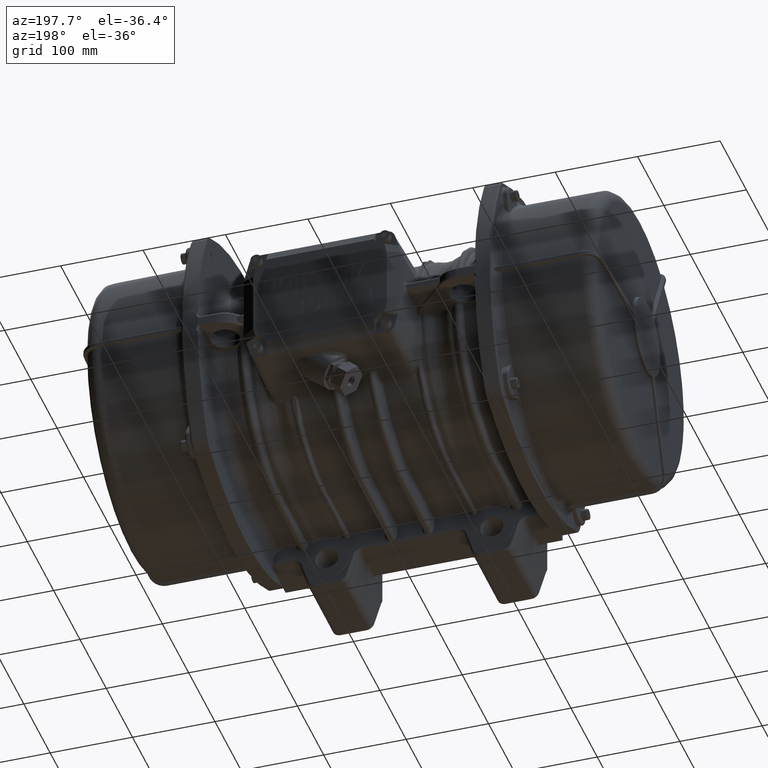
[diagram: clean part render]
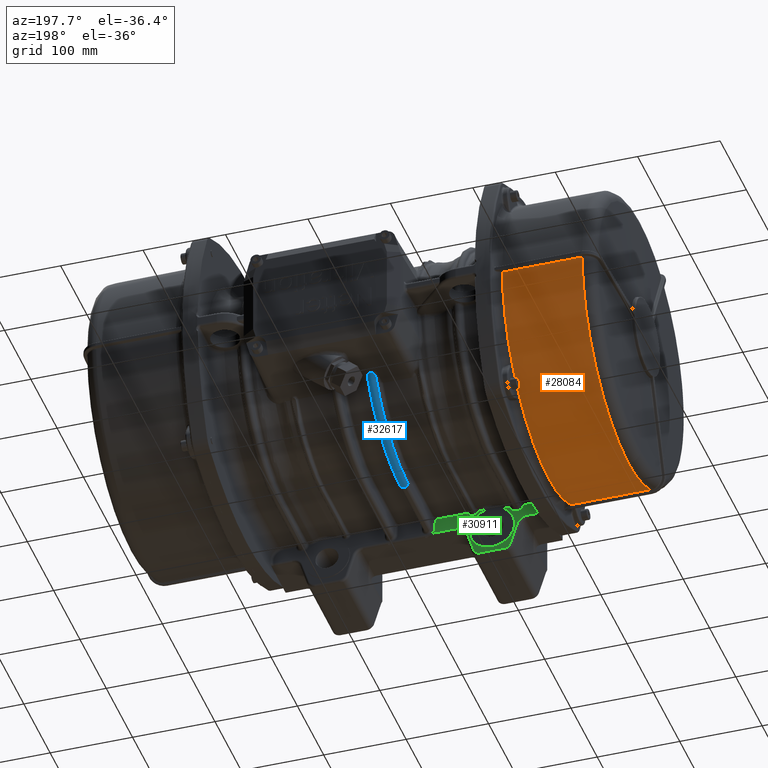
[diagram: same view with three faces highlighted in distinct colors, each labeled with its STEP entity id]
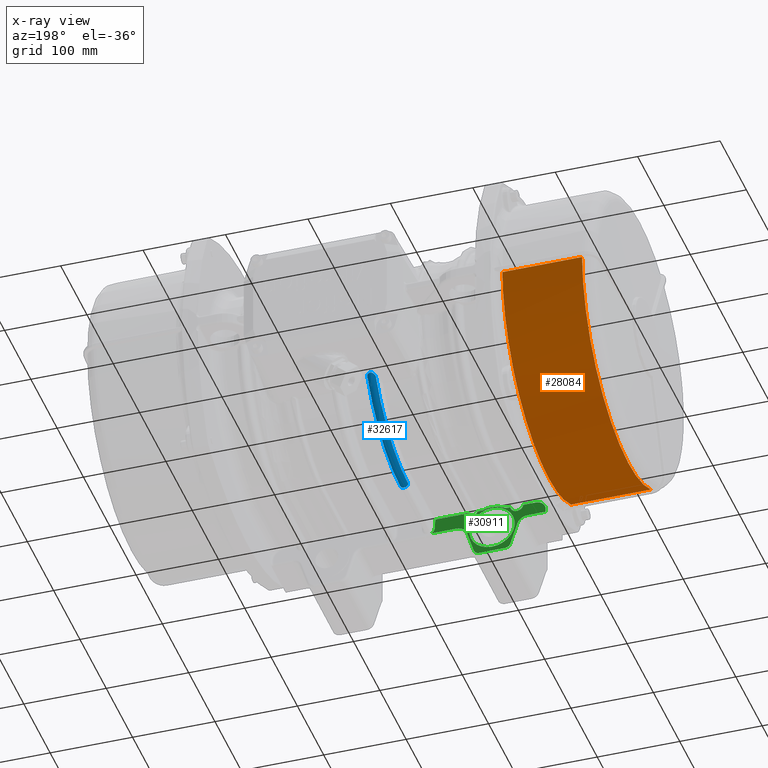
[diagram: x-ray of the same camera — body ghosted, the three highlighted faces saturated]
A machine part, auxiliary view with three faces highlighted in distinct colors.
The next image is the same camera in x-ray (body ghosted, the three faces saturated) — at least one of them is partly hidden behind the body in this view.
Their STEP definitions:

[orange] entity #28084 — the highlighted cylindrical surface (partial cylindrical patch) has radius 176 mm, axis along (1, 0, 0).
#1905 = VERTEX_POINT ( 'NONE', #36332 ) ;
#1939 = EDGE_CURVE ( 'NONE', #1905, #66290, #36334, .T. ) ;
#3062 = CARTESIAN_POINT ( 'NONE',  ( -294.7273494982050000, 192.0000000000000000, -176.0000000000000000 ) ) ;
#3078 = CARTESIAN_POINT ( 'NONE',  ( -294.7273494982050000, 367.9655876217494800, -3.480225988700564900 ) ) ;
#3145 = DIRECTION ( 'NONE',  ( 0.0000000000000000000, 9.462128050782584900E-016, -1.000000000000000000 ) ) ;
#3146 = DIRECTION ( 'NONE',  ( -1.000000000000000000, -0.0000000000000000000, -0.0000000000000000000 ) ) ;
#3147 = CARTESIAN_POINT ( 'NONE',  ( -294.7273494982050000, 192.0000000000000000, 0.0000000000000000000 ) ) ;
#3153 = CIRCLE ( 'NONE', #3159, 176.0000000000000000 ) ;
#3159 = AXIS2_PLACEMENT_3D ( 'NONE', #3147, #3146, #3145 ) ;
#3796 = CIRCLE ( 'NONE', #3831, 176.0000000000000000 ) ;
#3825 = CARTESIAN_POINT ( 'NONE',  ( -198.0000000000000000, 192.0000000000000000, 0.0000000000000000000 ) ) ;
#3831 = AXIS2_PLACEMENT_3D ( 'NONE', #3825, #3884, #3883 ) ;
#3883 = DIRECTION ( 'NONE',  ( 0.0000000000000000000, 0.0000000000000000000, -1.000000000000000000 ) ) ;
#3884 = DIRECTION ( 'NONE',  ( 1.000000000000000000, 0.0000000000000000000, 0.0000000000000000000 ) ) ;
#4163 = CARTESIAN_POINT ( 'NONE',  ( -198.0000000000000000, 192.0000000000000000, -176.0000000000000000 ) ) ;
#4180 = CARTESIAN_POINT ( 'NONE',  ( -198.0000000000000000, 107.0311703062521900, -154.1307820666425000 ) ) ;
#6059 = CARTESIAN_POINT ( 'NONE',  ( -198.0000000000000000, 367.9655876217494800, -3.480225988700564900 ) ) ;
#6127 = CIRCLE ( 'NONE', #6227, 176.0000000000000000 ) ;
#6181 = CARTESIAN_POINT ( 'NONE',  ( -198.0000000000000000, 303.0157716701859800, -136.5704889076450000 ) ) ;
#6220 = DIRECTION ( 'NONE',  ( 0.0000000000000000000, 0.0000000000000000000, -1.000000000000000000 ) ) ;
#6221 = DIRECTION ( 'NONE',  ( 1.000000000000000000, 0.0000000000000000000, 0.0000000000000000000 ) ) ;
#6227 = AXIS2_PLACEMENT_3D ( 'NONE', #6231, #6221, #6220 ) ;
#6231 = CARTESIAN_POINT ( 'NONE',  ( -198.0000000000000000, 192.0000000000000000, 0.0000000000000000000 ) ) ;
#27960 = ORIENTED_EDGE ( 'NONE', *, *, #28061, .F. ) ;
#27963 = EDGE_LOOP ( 'NONE', ( #28068, #27960, #28000, #27997, #28003, #28005, #27999, #28074 ) ) ;
#27997 = ORIENTED_EDGE ( 'NONE', *, *, #52320, .F. ) ;
#27998 = EDGE_CURVE ( 'NONE', #51563, #28064, #48599, .T. ) ;
#27999 = ORIENTED_EDGE ( 'NONE', *, *, #28085, .F. ) ;
#28000 = ORIENTED_EDGE ( 'NONE', *, *, #27998, .F. ) ;
#28003 = ORIENTED_EDGE ( 'NONE', *, *, #28067, .F. ) ;
#28005 = ORIENTED_EDGE ( 'NONE', *, *, #1939, .F. ) ;
#28061 = EDGE_CURVE ( 'NONE', #28064, #58779, #48787, .T. ) ;
#28064 = VERTEX_POINT ( 'NONE', #48790 ) ;
#28067 = EDGE_CURVE ( 'NONE', #66290, #51921, #48776, .T. ) ;
#28068 = ORIENTED_EDGE ( 'NONE', *, *, #56525, .F. ) ;
#28074 = ORIENTED_EDGE ( 'NONE', *, *, #66765, .F. ) ;
#28084 = ADVANCED_FACE ( 'NONE', ( #48815 ), #48822, .T. ) ;
#28085 = EDGE_CURVE ( 'NONE', #66762, #1905, #48805, .T. ) ;
#36328 = DIRECTION ( 'NONE',  ( 0.0000000000000000000, 0.0000000000000000000, -1.000000000000000000 ) ) ;
#36329 = DIRECTION ( 'NONE',  ( 1.000000000000000000, 0.0000000000000000000, 0.0000000000000000000 ) ) ;
#36330 = AXIS2_PLACEMENT_3D ( 'NONE', #36339, #36329, #36328 ) ;
#36332 = CARTESIAN_POINT ( 'NONE',  ( -198.0000000000000000, 328.5704889076450300, -111.0157716701859800 ) ) ;
#36334 = CIRCLE ( 'NONE', #36330, 176.0000000000000000 ) ;
#36339 = CARTESIAN_POINT ( 'NONE',  ( -198.0000000000000000, 192.0000000000000000, 0.0000000000000000000 ) ) ;
#48599 = CIRCLE ( 'NONE', #48641, 176.0000000000000000 ) ;
#48629 = DIRECTION ( 'NONE',  ( 0.0000000000000000000, 0.0000000000000000000, -1.000000000000000000 ) ) ;
#48630 = DIRECTION ( 'NONE',  ( -1.000000000000000000, -0.0000000000000000000, -0.0000000000000000000 ) ) ;
#48631 = CARTESIAN_POINT ( 'NONE',  ( -294.7273494982050000, 192.0000000000000000, 0.0000000000000000000 ) ) ;
#48641 = AXIS2_PLACEMENT_3D ( 'NONE', #48631, #48630, #48629 ) ;
#48773 = DIRECTION ( 'NONE',  ( -1.000000000000000000, -0.0000000000000000000, -0.0000000000000000000 ) ) ;
#48774 = VECTOR ( 'NONE', #48773, 1000.000000000000000 ) ;
#48775 = CARTESIAN_POINT ( 'NONE',  ( -318.1999999999999900, 367.9655876217494800, -3.480225988700564900 ) ) ;
#48776 = LINE ( 'NONE', #48775, #48774 ) ;
#48780 = DIRECTION ( 'NONE',  ( 1.000000000000000000, 0.0000000000000000000, 0.0000000000000000000 ) ) ;
#48781 = VECTOR ( 'NONE', #48780, 1000.000000000000000 ) ;
#48787 = LINE ( 'NONE', #48789, #48781 ) ;
#48789 = CARTESIAN_POINT ( 'NONE',  ( -318.1999999999999900, 107.0311703062521900, -154.1307820666425000 ) ) ;
#48790 = CARTESIAN_POINT ( 'NONE',  ( -294.7273494982050000, 107.0311703062521900, -154.1307820666425000 ) ) ;
#48802 = DIRECTION ( 'NONE',  ( 0.0000000000000000000, 0.0000000000000000000, 1.000000000000000000 ) ) ;
#48803 = DIRECTION ( 'NONE',  ( 1.000000000000000000, 0.0000000000000000000, 0.0000000000000000000 ) ) ;
#48805 = CIRCLE ( 'NONE', #48855, 176.0000000000000000 ) ;
#48808 = CARTESIAN_POINT ( 'NONE',  ( -318.1999999999999900, 192.0000000000000000, 0.0000000000000000000 ) ) ;
#48815 = FACE_OUTER_BOUND ( 'NONE', #27963, .T. ) ;
#48816 = AXIS2_PLACEMENT_3D ( 'NONE', #48808, #48803, #48802 ) ;
#48822 = CYLINDRICAL_SURFACE ( 'NONE', #48816, 176.0000000000000000 ) ;
#48852 = DIRECTION ( 'NONE',  ( 0.0000000000000000000, 0.0000000000000000000, -1.000000000000000000 ) ) ;
#48853 = DIRECTION ( 'NONE',  ( 1.000000000000000000, 0.0000000000000000000, 0.0000000000000000000 ) ) ;
#48854 = CARTESIAN_POINT ( 'NONE',  ( -198.0000000000000000, 192.0000000000000000, 0.0000000000000000000 ) ) ;
#48855 = AXIS2_PLACEMENT_3D ( 'NONE', #48854, #48853, #48852 ) ;
#51563 = VERTEX_POINT ( 'NONE', #3062 ) ;
#51921 = VERTEX_POINT ( 'NONE', #3078 ) ;
#52320 = EDGE_CURVE ( 'NONE', #51921, #51563, #3153, .T. ) ;
#56525 = EDGE_CURVE ( 'NONE', #58779, #58784, #3796, .T. ) ;
#58779 = VERTEX_POINT ( 'NONE', #4180 ) ;
#58784 = VERTEX_POINT ( 'NONE', #4163 ) ;
#66290 = VERTEX_POINT ( 'NONE', #6059 ) ;
#66762 = VERTEX_POINT ( 'NONE', #6181 ) ;
#66765 = EDGE_CURVE ( 'NONE', #58784, #66762, #6127, .T. ) ;

[blue] entity #32617 — the highlighted toroidal blend (fillet) surface has major radius 145 mm and minor (blend) radius 5 mm.
#32544 = ORIENTED_EDGE ( 'NONE', *, *, #32604, .F. ) ;
#32547 = ORIENTED_EDGE ( 'NONE', *, *, #32614, .T. ) ;
#32548 = EDGE_LOOP ( 'NONE', ( #32600, #32547, #32603, #32544 ) ) ;
#32549 = VERTEX_POINT ( 'NONE', #62204 ) ;
#32600 = ORIENTED_EDGE ( 'NONE', *, *, #32611, .F. ) ;
#32602 = VERTEX_POINT ( 'NONE', #62369 ) ;
#32603 = ORIENTED_EDGE ( 'NONE', *, *, #32609, .T. ) ;
#32604 = EDGE_CURVE ( 'NONE', #32549, #32602, #62403, .T. ) ;
#32609 = EDGE_CURVE ( 'NONE', #32615, #32602, #62395, .T. ) ;
#32610 = VERTEX_POINT ( 'NONE', #62461 ) ;
#32611 = EDGE_CURVE ( 'NONE', #32610, #32549, #62463, .T. ) ;
#32614 = EDGE_CURVE ( 'NONE', #32610, #32615, #62439, .T. ) ;
#32615 = VERTEX_POINT ( 'NONE', #62458 ) ;
#32617 = ADVANCED_FACE ( 'NONE', ( #62453 ), #62438, .T. ) ;
#62204 = CARTESIAN_POINT ( 'NONE',  ( -27.49314767377285000, 192.0000000000000000, -145.2616797812146100 ) ) ;
#62369 = CARTESIAN_POINT ( 'NONE',  ( -17.50685232622709700, 192.0000000000000000, -145.2616797812146100 ) ) ;
#62391 = DIRECTION ( 'NONE',  ( 0.0000000000000000000, 5.551115123125778000E-015, -1.000000000000000000 ) ) ;
#62392 = DIRECTION ( 'NONE',  ( 0.0000000000000000000, -1.000000000000000000, -3.491483361109380100E-015 ) ) ;
#62393 = CARTESIAN_POINT ( 'NONE',  ( -22.50000000000000000, 192.0000000000000000, -145.0000000000000000 ) ) ;
#62394 = AXIS2_PLACEMENT_3D ( 'NONE', #62393, #62392, #62391 ) ;
#62395 = CIRCLE ( 'NONE', #62456, 145.2616797812146100 ) ;
#62403 = CIRCLE ( 'NONE', #62394, 5.000000000000004400 ) ;
#62429 = CARTESIAN_POINT ( 'NONE',  ( -25.82168555872691200, 319.7250683078392500, -76.24558593381448200 ) ) ;
#62430 = CARTESIAN_POINT ( 'NONE',  ( -26.05491360232753100, 319.4181314283311500, -76.32590107787559900 ) ) ;
#62431 = CARTESIAN_POINT ( 'NONE',  ( -26.45893102383966100, 318.7806706196648700, -76.49335913303477200 ) ) ;
#62432 = CARTESIAN_POINT ( 'NONE',  ( -26.63256880780872700, 318.4473047679450100, -76.58123969586637300 ) ) ;
#62433 = CARTESIAN_POINT ( 'NONE',  ( -26.93149750891170100, 317.7556930875536500, -76.76430417584049300 ) ) ;
#62434 = CARTESIAN_POINT ( 'NONE',  ( -27.05632007852972600, 317.3971714623569900, -76.85956771586801000 ) ) ;
#62435 = CARTESIAN_POINT ( 'NONE',  ( -27.35708452477506800, 316.3166869459751600, -77.14785012040103100 ) ) ;
#62436 = CARTESIAN_POINT ( 'NONE',  ( -27.46557129251683100, 315.5800906977395900, -77.34592474194130300 ) ) ;
#62437 = CARTESIAN_POINT ( 'NONE',  ( -27.49314767377290300, 314.8292738233140000, -77.54950099708899800 ) ) ;
#62438 = TOROIDAL_SURFACE ( 'NONE', #62440, 145.0000000000000000, 5.000000000000000000 ) ;
#62439 = B_SPLINE_CURVE_WITH_KNOTS ( 'NONE', 3,
 ( #62437, #62436, #62435, #62434, #62433, #62432, #62431, #62430, #62429, #62505, #62504, #62503, #62502, #62501, #62500, #62499, #62498, #62497, #62496, #62495, #62494, #62493, #62492, #62491, #62490, #62489, #62487, #62486, #62485, #62484, #62483, #62482, #62481, #62480, #62479, #62478 ),
 .UNSPECIFIED., .F., .F.,
 ( 4, 2, 2, 2, 2, 2, 2, 2, 2, 2, 2, 2, 2, 2, 2, 2, 2, 4 ),
 ( 0.0000000000000000000, 0.002309086581001514000, 0.003463629871502265900, 0.004618173162003018400, 0.005772716452503770300, 0.006927259743004521500, 0.007504531388254943000, 0.008081803033505365400, 0.008659074678755786900, 0.009236346324006208500, 0.01039088961450705200, 0.01096816125975747100, 0.01154543290500788900, 0.01269997619550882100, 0.01385451948600974900, 0.01500906277651067900, 0.01616360606701160900, 0.01847269264801331900 ),
 .UNSPECIFIED. ) ;
#62440 = AXIS2_PLACEMENT_3D ( 'NONE', #62476, #62531, #62526 ) ;
#62446 = DIRECTION ( 'NONE',  ( 2.866094037061206900E-016, -1.000000000000000000, 0.0000000000000000000 ) ) ;
#62453 = FACE_OUTER_BOUND ( 'NONE', #32548, .T. ) ;
#62454 = AXIS2_PLACEMENT_3D ( 'NONE', #62459, #62457, #62446 ) ;
#62455 = DIRECTION ( 'NONE',  ( 2.866094037061206900E-016, -1.000000000000000000, 0.0000000000000000000 ) ) ;
#62456 = AXIS2_PLACEMENT_3D ( 'NONE', #62460, #62462, #62455 ) ;
#62457 = DIRECTION ( 'NONE',  ( -1.000000000000000000, -2.954685734924855400E-016, 0.0000000000000000000 ) ) ;
#62458 = CARTESIAN_POINT ( 'NONE',  ( -17.50685232622715000, 314.8292738233140000, -77.54950099708909800 ) ) ;
#62459 = CARTESIAN_POINT ( 'NONE',  ( -27.49314767377285000, 192.0000000000000000, 0.0000000000000000000 ) ) ;
#62460 = CARTESIAN_POINT ( 'NONE',  ( -17.50685232622709700, 192.0000000000000000, 0.0000000000000000000 ) ) ;
#62461 = CARTESIAN_POINT ( 'NONE',  ( -27.49314767377290300, 314.8292738233140000, -77.54950099708899800 ) ) ;
#62462 = DIRECTION ( 'NONE',  ( -1.000000000000000000, -2.954685734924855400E-016, 0.0000000000000000000 ) ) ;
#62463 = CIRCLE ( 'NONE', #62454, 145.2616797812146100 ) ;
#62476 = CARTESIAN_POINT ( 'NONE',  ( -22.50000000000000000, 192.0000000000000000, 0.0000000000000000000 ) ) ;
#62478 = CARTESIAN_POINT ( 'NONE',  ( -17.50685232622715000, 314.8292738233140000, -77.54950099708909800 ) ) ;
#62479 = CARTESIAN_POINT ( 'NONE',  ( -17.53445597881295400, 315.5808332090342700, -77.34572341765864700 ) ) ;
#62480 = CARTESIAN_POINT ( 'NONE',  ( -17.64385592480598000, 316.3234123109943400, -77.14604126533127700 ) ) ;
#62481 = CARTESIAN_POINT ( 'NONE',  ( -17.94746551110850800, 317.4090621220678900, -76.85640257629336200 ) ) ;
#62482 = CARTESIAN_POINT ( 'NONE',  ( -18.07292651534640600, 317.7673836800528300, -76.76120224305181200 ) ) ;
#62483 = CARTESIAN_POINT ( 'NONE',  ( -18.37261991906412500, 318.4578070601728000, -76.57846758239863000 ) ) ;
#62484 = CARTESIAN_POINT ( 'NONE',  ( -18.54715745362087300, 318.7919163093849900, -76.49039661821436200 ) ) ;
#62485 = CARTESIAN_POINT ( 'NONE',  ( -18.95577513951296900, 319.4332881046252600, -76.32192816105359200 ) ) ;
#62486 = CARTESIAN_POINT ( 'NONE',  ( -19.18775694177274000, 319.7365990046765200, -76.24257193622625600 ) ) ;
#62487 = CARTESIAN_POINT ( 'NONE',  ( -19.70911321376621600, 320.2898789251436800, -76.09824526224720400 ) ) ;
#62489 = CARTESIAN_POINT ( 'NONE',  ( -20.00382701962402300, 320.5442014857476900, -76.03214280166581300 ) ) ;
#62490 = CARTESIAN_POINT ( 'NONE',  ( -20.48273742845209000, 320.8617259536046600, -75.94979094998456000 ) ) ;
#62491 = CARTESIAN_POINT ( 'NONE',  ( -20.64864950907004000, 320.9573183131379300, -75.92503238154479600 ) ) ;
#62492 = CARTESIAN_POINT ( 'NONE',  ( -20.99430803114550400, 321.1258970898408100, -75.88140802502640300 ) ) ;
#62493 = CARTESIAN_POINT ( 'NONE',  ( -21.17551798325245100, 321.1993441986943500, -75.86242322685194500 ) ) ;
#62494 = CARTESIAN_POINT ( 'NONE',  ( -21.73235080224011600, 321.3773533239248100, -75.81643684669427300 ) ) ;
#62495 = CARTESIAN_POINT ( 'NONE',  ( -22.11243519560441900, 321.4383990706971300, -75.80069921994335400 ) ) ;
#62496 = CARTESIAN_POINT ( 'NONE',  ( -22.69668795535733400, 321.4380900934025400, -75.80077892774350800 ) ) ;
#62497 = CARTESIAN_POINT ( 'NONE',  ( -22.89352794490225300, 321.4222293747192800, -75.80486983103405400 ) ) ;
#62498 = CARTESIAN_POINT ( 'NONE',  ( -23.28089224799281700, 321.3596768401610000, -75.82101269287906600 ) ) ;
#62499 = CARTESIAN_POINT ( 'NONE',  ( -23.46972390857787300, 321.3135159796216800, -75.83292786505653300 ) ) ;
#62500 = CARTESIAN_POINT ( 'NONE',  ( -23.83710866512792100, 321.1944826840140800, -75.86367972425929900 ) ) ;
#62501 = CARTESIAN_POINT ( 'NONE',  ( -24.01591675597022000, 321.1215529141958900, -75.88253124770206200 ) ) ;
#62502 = CARTESIAN_POINT ( 'NONE',  ( -24.36429056287362400, 320.9503207422525300, -75.92684421030024600 ) ) ;
#62503 = CARTESIAN_POINT ( 'NONE',  ( -24.53375784904948600, 320.8517820213483600, -75.95236760650763600 ) ) ;
#62504 = CARTESIAN_POINT ( 'NONE',  ( -25.01486580925989100, 320.5296536597620000, -76.03592098894573300 ) ) ;
#62505 = CARTESIAN_POINT ( 'NONE',  ( -25.30167741228840200, 320.2798800069168100, -76.10084763883296000 ) ) ;
#62526 = DIRECTION ( 'NONE',  ( 2.954685734924855400E-016, -1.000000000000000000, 0.0000000000000000000 ) ) ;
#62531 = DIRECTION ( 'NONE',  ( -1.000000000000000000, -2.954685734924855400E-016, 0.0000000000000000000 ) ) ;

[green] entity #30911 — the highlighted planar face has unit normal (0, 1, 0).
#30190 = VERTEX_POINT ( 'NONE', #55546 ) ;
#30196 = VERTEX_POINT ( 'NONE', #55588 ) ;
#30200 = EDGE_CURVE ( 'NONE', #30196, #30190, #55582, .T. ) ;
#30859 = VERTEX_POINT ( 'NONE', #57529 ) ;
#30902 = EDGE_CURVE ( 'NONE', #30910, #30990, #57649, .T. ) ;
#30903 = ORIENTED_EDGE ( 'NONE', *, *, #30904, .T. ) ;
#30904 = EDGE_CURVE ( 'NONE', #30987, #30986, #57650, .T. ) ;
#30905 = VERTEX_POINT ( 'NONE', #57589 ) ;
#30906 = EDGE_CURVE ( 'NONE', #30986, #30910, #57631, .T. ) ;
#30908 = VERTEX_POINT ( 'NONE', #57625 ) ;
#30909 = VERTEX_POINT ( 'NONE', #57624 ) ;
#30910 = VERTEX_POINT ( 'NONE', #57620 ) ;
#30911 = ADVANCED_FACE ( 'NONE', ( #57618, #57638 ), #57627, .T. ) ;
#30912 = ORIENTED_EDGE ( 'NONE', *, *, #33698, .F. ) ;
#30913 = VERTEX_POINT ( 'NONE', #57617 ) ;
#30914 = EDGE_CURVE ( 'NONE', #33709, #33716, #57662, .T. ) ;
#30915 = VERTEX_POINT ( 'NONE', #57664 ) ;
#30916 = EDGE_CURVE ( 'NONE', #30908, #30915, #57669, .T. ) ;
#30917 = EDGE_LOOP ( 'NONE', ( #30981, #30918, #30988, #30991, #30983, #30903, #30973, #30975, #30978, #30972, #30980, #30958, #30961, #30965, #30969, #30946, #30933, #31036, #30954, #30948, #30950, #30952, #31033 ) ) ;
#30918 = ORIENTED_EDGE ( 'NONE', *, *, #30982, .T. ) ;
#30925 = EDGE_LOOP ( 'NONE', ( #30931, #30912 ) ) ;
#30931 = ORIENTED_EDGE ( 'NONE', *, *, #30914, .F. ) ;
#30933 = ORIENTED_EDGE ( 'NONE', *, *, #30964, .T. ) ;
#30946 = ORIENTED_EDGE ( 'NONE', *, *, #31035, .T. ) ;
#30947 = VERTEX_POINT ( 'NONE', #57758 ) ;
#30948 = ORIENTED_EDGE ( 'NONE', *, *, #30955, .T. ) ;
#30949 = EDGE_CURVE ( 'NONE', #30960, #30963, #57757, .T. ) ;
#30950 = ORIENTED_EDGE ( 'NONE', *, *, #31029, .T. ) ;
#30951 = EDGE_CURVE ( 'NONE', #30963, #30909, #57756, .T. ) ;
#30952 = ORIENTED_EDGE ( 'NONE', *, *, #31031, .T. ) ;
#30953 = VERTEX_POINT ( 'NONE', #57750 ) ;
#30954 = ORIENTED_EDGE ( 'NONE', *, *, #30951, .T. ) ;
#30955 = EDGE_CURVE ( 'NONE', #30909, #30947, #57749, .T. ) ;
#30956 = EDGE_CURVE ( 'NONE', #30905, #30979, #57746, .T. ) ;
#30958 = ORIENTED_EDGE ( 'NONE', *, *, #30956, .T. ) ;
#30959 = EDGE_CURVE ( 'NONE', #30979, #30971, #57795, .T. ) ;
#30960 = VERTEX_POINT ( 'NONE', #57751 ) ;
#30961 = ORIENTED_EDGE ( 'NONE', *, *, #30959, .T. ) ;
#30962 = EDGE_CURVE ( 'NONE', #30971, #30974, #57766, .T. ) ;
#30963 = VERTEX_POINT ( 'NONE', #57789 ) ;
#30964 = EDGE_CURVE ( 'NONE', #30967, #30960, #57786, .T. ) ;
#30965 = ORIENTED_EDGE ( 'NONE', *, *, #30962, .T. ) ;
#30966 = EDGE_CURVE ( 'NONE', #30974, #30970, #57779, .T. ) ;
#30967 = VERTEX_POINT ( 'NONE', #57796 ) ;
#30968 = VERTEX_POINT ( 'NONE', #57737 ) ;
#30969 = ORIENTED_EDGE ( 'NONE', *, *, #30966, .T. ) ;
#30970 = VERTEX_POINT ( 'NONE', #57781 ) ;
#30971 = VERTEX_POINT ( 'NONE', #57780 ) ;
#30972 = ORIENTED_EDGE ( 'NONE', *, *, #30200, .T. ) ;
#30973 = ORIENTED_EDGE ( 'NONE', *, *, #30906, .T. ) ;
#30974 = VERTEX_POINT ( 'NONE', #57790 ) ;
#30975 = ORIENTED_EDGE ( 'NONE', *, *, #30902, .T. ) ;
#30976 = EDGE_CURVE ( 'NONE', #30990, #30196, #57773, .T. ) ;
#30977 = EDGE_CURVE ( 'NONE', #30190, #30905, #57775, .T. ) ;
#30978 = ORIENTED_EDGE ( 'NONE', *, *, #30976, .T. ) ;
#30979 = VERTEX_POINT ( 'NONE', #57829 ) ;
#30980 = ORIENTED_EDGE ( 'NONE', *, *, #30977, .T. ) ;
#30981 = ORIENTED_EDGE ( 'NONE', *, *, #30916, .T. ) ;
#30982 = EDGE_CURVE ( 'NONE', #30915, #30859, #57825, .T. ) ;
#30983 = ORIENTED_EDGE ( 'NONE', *, *, #30992, .T. ) ;
#30984 = VERTEX_POINT ( 'NONE', #57826 ) ;
#30985 = EDGE_CURVE ( 'NONE', #30859, #30984, #57827, .T. ) ;
#30986 = VERTEX_POINT ( 'NONE', #57830 ) ;
#30987 = VERTEX_POINT ( 'NONE', #57820 ) ;
#30988 = ORIENTED_EDGE ( 'NONE', *, *, #30985, .T. ) ;
#30989 = EDGE_CURVE ( 'NONE', #30984, #30913, #57814, .T. ) ;
#30990 = VERTEX_POINT ( 'NONE', #57821 ) ;
#30991 = ORIENTED_EDGE ( 'NONE', *, *, #30989, .T. ) ;
#30992 = EDGE_CURVE ( 'NONE', #30913, #30987, #57804, .T. ) ;
#31029 = EDGE_CURVE ( 'NONE', #30947, #30953, #57912, .T. ) ;
#31031 = EDGE_CURVE ( 'NONE', #30953, #30968, #57917, .T. ) ;
#31032 = EDGE_CURVE ( 'NONE', #30968, #30908, #57903, .T. ) ;
#31033 = ORIENTED_EDGE ( 'NONE', *, *, #31032, .T. ) ;
#31035 = EDGE_CURVE ( 'NONE', #30970, #30967, #57940, .T. ) ;
#31036 = ORIENTED_EDGE ( 'NONE', *, *, #30949, .T. ) ;
#33698 = EDGE_CURVE ( 'NONE', #33716, #33709, #65758, .T. ) ;
#33709 = VERTEX_POINT ( 'NONE', #65409 ) ;
#33716 = VERTEX_POINT ( 'NONE', #65789 ) ;
#55542 = AXIS2_PLACEMENT_3D ( 'NONE', #55575, #55564, #55563 ) ;
#55546 = CARTESIAN_POINT ( 'NONE',  ( -91.15759033878319400, 100.0000000000000000, -132.3809523809528100 ) ) ;
#55563 = DIRECTION ( 'NONE',  ( 0.0000000000000000000, 0.0000000000000000000, 1.000000000000000000 ) ) ;
#55564 = DIRECTION ( 'NONE',  ( 0.0000000000000000000, 1.000000000000000000, 0.0000000000000000000 ) ) ;
#55575 = CARTESIAN_POINT ( 'NONE',  ( -100.0000000000000000, 100.0000000000000000, -160.0000000000000000 ) ) ;
#55582 = CIRCLE ( 'NONE', #55542, 28.99999999999999600 ) ;
#55588 = CARTESIAN_POINT ( 'NONE',  ( -100.0000000000000000, 100.0000000000000000, -131.0000000000000000 ) ) ;
#57035 = DIRECTION ( 'NONE',  ( -5.337610695313253000E-015, 0.0000000000000000000, 1.000000000000000000 ) ) ;
#57529 = CARTESIAN_POINT ( 'NONE',  ( -165.0000000000000000, 100.0000000000000000, -152.0000000000000000 ) ) ;
#57584 = AXIS2_PLACEMENT_3D ( 'NONE', #57591, #57640, #57639 ) ;
#57589 = CARTESIAN_POINT ( 'NONE',  ( -87.19375152513438800, 100.0000000000000000, -133.0000000000000000 ) ) ;
#57591 = CARTESIAN_POINT ( 'NONE',  ( -119.8746069143442100, 100.0000000000000000, -122.9999999999964000 ) ) ;
#57617 = CARTESIAN_POINT ( 'NONE',  ( -153.0000000000000000, 100.0000000000000000, -135.9999999999962200 ) ) ;
#57618 = FACE_BOUND ( 'NONE', #30925, .T. ) ;
#57620 = CARTESIAN_POINT ( 'NONE',  ( -119.8746069143442100, 100.0000000000000000, -135.9999999999962200 ) ) ;
#57624 = CARTESIAN_POINT ( 'NONE',  ( -77.81748964407789500, 100.0000000000000000, -188.0842397518025000 ) ) ;
#57625 = CARTESIAN_POINT ( 'NONE',  ( -130.5896236247162100, 100.0000000000000000, -161.1292690323664900 ) ) ;
#57627 = PLANE ( 'NONE',  #57634 ) ;
#57628 = DIRECTION ( 'NONE',  ( 1.000000000000000000, -0.0000000000000000000, -0.0000000000000000000 ) ) ;
#57629 = VECTOR ( 'NONE', #57628, 1000.000000000000000 ) ;
#57630 = CARTESIAN_POINT ( 'NONE',  ( -143.0000000000000000, 100.0000000000000000, -135.9999999999962200 ) ) ;
#57631 = LINE ( 'NONE', #57630, #57629 ) ;
#57634 = AXIS2_PLACEMENT_3D ( 'NONE', #57668, #57667, #57666 ) ;
#57635 = DIRECTION ( 'NONE',  ( -3.469446951953611000E-015, 0.0000000000000000000, 1.000000000000000000 ) ) ;
#57636 = DIRECTION ( 'NONE',  ( -0.0000000000000000000, -1.000000000000000000, -0.0000000000000000000 ) ) ;
#57638 = FACE_OUTER_BOUND ( 'NONE', #30917, .T. ) ;
#57639 = DIRECTION ( 'NONE',  ( -2.135044278125301300E-015, 0.0000000000000000000, 1.000000000000000000 ) ) ;
#57640 = DIRECTION ( 'NONE',  ( -0.0000000000000000000, -1.000000000000000000, -0.0000000000000000000 ) ) ;
#57641 = CARTESIAN_POINT ( 'NONE',  ( -130.0000000000000000, 100.0000000000000000, -135.0000000000000000 ) ) ;
#57644 = AXIS2_PLACEMENT_3D ( 'NONE', #57641, #57636, #57635 ) ;
#57649 = CIRCLE ( 'NONE', #57584, 12.99999999999999800 ) ;
#57650 = CIRCLE ( 'NONE', #57644, 8.000000000000007100 ) ;
#57658 = AXIS2_PLACEMENT_3D ( 'NONE', #57663, #57707, #57706 ) ;
#57659 = DIRECTION ( 'NONE',  ( 0.0000000000000000000, 0.0000000000000000000, 1.000000000000000000 ) ) ;
#57660 = DIRECTION ( 'NONE',  ( 0.0000000000000000000, 1.000000000000000000, 0.0000000000000000000 ) ) ;
#57661 = AXIS2_PLACEMENT_3D ( 'NONE', #57670, #57660, #57659 ) ;
#57662 = CIRCLE ( 'NONE', #57661, 27.49999999999999600 ) ;
#57663 = CARTESIAN_POINT ( 'NONE',  ( -143.0000000000000000, 100.0000000000000000, -165.0000000000000000 ) ) ;
#57664 = CARTESIAN_POINT ( 'NONE',  ( -143.0000000000000000, 100.0000000000000000, -152.0000000000000000 ) ) ;
#57666 = DIRECTION ( 'NONE',  ( 0.0000000000000000000, 0.0000000000000000000, 1.000000000000000000 ) ) ;
#57667 = DIRECTION ( 'NONE',  ( 0.0000000000000000000, 1.000000000000000000, 0.0000000000000000000 ) ) ;
#57668 = CARTESIAN_POINT ( 'NONE',  ( -143.0000000000000000, 100.0000000000000000, -165.0000000000000000 ) ) ;
#57669 = CIRCLE ( 'NONE', #57658, 13.00000000000001100 ) ;
#57670 = CARTESIAN_POINT ( 'NONE',  ( -100.0000000000000000, 100.0000000000000000, -160.0000000000000000 ) ) ;
#57706 = DIRECTION ( 'NONE',  ( -4.270088556250598700E-015, 0.0000000000000000000, 1.000000000000000000 ) ) ;
#57707 = DIRECTION ( 'NONE',  ( -0.0000000000000000000, -1.000000000000000000, -0.0000000000000000000 ) ) ;
#57726 = AXIS2_PLACEMENT_3D ( 'NONE', #57754, #57753, #57752 ) ;
#57737 = CARTESIAN_POINT ( 'NONE',  ( -122.1825103559220100, 100.0000000000000000, -188.0842397518025000 ) ) ;
#57738 = DIRECTION ( 'NONE',  ( 1.000000000000000000, -0.0000000000000000000, -0.0000000000000000000 ) ) ;
#57739 = VECTOR ( 'NONE', #57738, 1000.000000000000000 ) ;
#57740 = DIRECTION ( 'NONE',  ( 1.000000000000000000, -0.0000000000000000000, 2.560469903783130400E-015 ) ) ;
#57741 = CARTESIAN_POINT ( 'NONE',  ( -143.0000000000000000, 100.0000000000000000, -133.0000000000000000 ) ) ;
#57742 = DIRECTION ( 'NONE',  ( 0.0000000000000000000, 0.0000000000000000000, 1.000000000000000000 ) ) ;
#57743 = DIRECTION ( 'NONE',  ( 0.0000000000000000000, 1.000000000000000000, 0.0000000000000000000 ) ) ;
#57744 = CARTESIAN_POINT ( 'NONE',  ( -84.50000000000000000, 100.0000000000000000, -186.0000000000000000 ) ) ;
#57745 = CARTESIAN_POINT ( 'NONE',  ( -143.0000000000000000, 100.0000000000000000, -133.0000000000000000 ) ) ;
#57746 = LINE ( 'NONE', #57745, #57739 ) ;
#57747 = DIRECTION ( 'NONE',  ( -0.2977485359718139400, 0.0000000000000000000, -0.9546443365602926800 ) ) ;
#57748 = VECTOR ( 'NONE', #57747, 1000.000000000000100 ) ;
#57749 = CIRCLE ( 'NONE', #57761, 7.000000000000006200 ) ;
#57750 = CARTESIAN_POINT ( 'NONE',  ( -115.5000000000000000, 100.0000000000000000, -193.0000000000000000 ) ) ;
#57751 = CARTESIAN_POINT ( 'NONE',  ( -57.00000000000000000, 100.0000000000000000, -152.0000000000000000 ) ) ;
#57752 = DIRECTION ( 'NONE',  ( 0.0000000000000000000, 0.0000000000000000000, 1.000000000000000000 ) ) ;
#57753 = DIRECTION ( 'NONE',  ( -0.0000000000000000000, -1.000000000000000000, -0.0000000000000000000 ) ) ;
#57754 = CARTESIAN_POINT ( 'NONE',  ( -57.00000000000000000, 100.0000000000000000, -165.0000000000000000 ) ) ;
#57755 = CARTESIAN_POINT ( 'NONE',  ( -77.81748964407800900, 100.0000000000000000, -188.0842397518025000 ) ) ;
#57756 = LINE ( 'NONE', #57755, #57748 ) ;
#57757 = CIRCLE ( 'NONE', #57726, 13.00000000000001100 ) ;
#57758 = CARTESIAN_POINT ( 'NONE',  ( -84.50000000000000000, 100.0000000000000000, -193.0000000000000000 ) ) ;
#57761 = AXIS2_PLACEMENT_3D ( 'NONE', #57744, #57743, #57742 ) ;
#57766 = LINE ( 'NONE', #57741, #57788 ) ;
#57767 = DIRECTION ( 'NONE',  ( -0.0000000000000000000, -1.000000000000000000, -0.0000000000000000000 ) ) ;
#57768 = CARTESIAN_POINT ( 'NONE',  ( -87.19375152513438800, 100.0000000000000000, -120.0000000000000000 ) ) ;
#57769 = DIRECTION ( 'NONE',  ( 0.0000000000000000000, 0.0000000000000000000, 1.000000000000000000 ) ) ;
#57770 = DIRECTION ( 'NONE',  ( 0.0000000000000000000, 1.000000000000000000, 0.0000000000000000000 ) ) ;
#57771 = CARTESIAN_POINT ( 'NONE',  ( -100.0000000000000000, 100.0000000000000000, -160.0000000000000000 ) ) ;
#57772 = AXIS2_PLACEMENT_3D ( 'NONE', #57771, #57770, #57769 ) ;
#57773 = CIRCLE ( 'NONE', #57772, 28.99999999999999600 ) ;
#57775 = CIRCLE ( 'NONE', #57782, 12.99999999999999800 ) ;
#57776 = DIRECTION ( 'NONE',  ( 0.05233595624294121200, -0.0000000000000000000, -0.9986295347545740600 ) ) ;
#57777 = VECTOR ( 'NONE', #57776, 1000.000000000000100 ) ;
#57778 = CARTESIAN_POINT ( 'NONE',  ( -29.77380744942160000, 100.0000000000000000, -159.0660666917505100 ) ) ;
#57779 = LINE ( 'NONE', #57778, #57777 ) ;
#57780 = CARTESIAN_POINT ( 'NONE',  ( -71.59167308680399300, 100.0000000000000000, -133.0000000000000000 ) ) ;
#57781 = CARTESIAN_POINT ( 'NONE',  ( -30.48903627803655100, 100.0000000000000000, -145.4186876499438200 ) ) ;
#57782 = AXIS2_PLACEMENT_3D ( 'NONE', #57768, #57767, #57035 ) ;
#57783 = DIRECTION ( 'NONE',  ( -1.000000000000000000, 0.0000000000000000000, 2.434699615406045200E-016 ) ) ;
#57784 = VECTOR ( 'NONE', #57783, 1000.000000000000000 ) ;
#57785 = CARTESIAN_POINT ( 'NONE',  ( -57.00000000000000000, 100.0000000000000000, -152.0000000000000000 ) ) ;
#57786 = LINE ( 'NONE', #57785, #57784 ) ;
#57788 = VECTOR ( 'NONE', #57740, 1000.000000000000000 ) ;
#57789 = CARTESIAN_POINT ( 'NONE',  ( -69.41037637528380300, 100.0000000000000000, -161.1292690323664900 ) ) ;
#57790 = CARTESIAN_POINT ( 'NONE',  ( -31.13987211937979900, 100.0000000000000000, -133.0000000000000000 ) ) ;
#57791 = DIRECTION ( 'NONE',  ( 2.523234146875353300E-015, 0.0000000000000000000, 1.000000000000000000 ) ) ;
#57792 = DIRECTION ( 'NONE',  ( -0.0000000000000000000, -1.000000000000000000, -0.0000000000000000000 ) ) ;
#57793 = CARTESIAN_POINT ( 'NONE',  ( -77.00000000000000000, 100.0000000000000000, -132.0000000000000000 ) ) ;
#57794 = AXIS2_PLACEMENT_3D ( 'NONE', #57793, #57792, #57791 ) ;
#57795 = CIRCLE ( 'NONE', #57794, 5.500000000000005300 ) ;
#57796 = CARTESIAN_POINT ( 'NONE',  ( -26.37298334620789900, 100.0000000000000000, -152.0000000000000000 ) ) ;
#57801 = DIRECTION ( 'NONE',  ( 1.000000000000000000, -0.0000000000000000000, -0.0000000000000000000 ) ) ;
#57802 = VECTOR ( 'NONE', #57801, 1000.000000000000000 ) ;
#57803 = CARTESIAN_POINT ( 'NONE',  ( -143.0000000000000000, 100.0000000000000000, -135.9999999999962200 ) ) ;
#57804 = LINE ( 'NONE', #57803, #57802 ) ;
#57809 = DIRECTION ( 'NONE',  ( 0.0000000000000000000, 0.0000000000000000000, 1.000000000000000000 ) ) ;
#57810 = DIRECTION ( 'NONE',  ( 0.0000000000000000000, 1.000000000000000000, 0.0000000000000000000 ) ) ;
#57811 = CARTESIAN_POINT ( 'NONE',  ( -153.0000000000000000, 100.0000000000000000, -147.9999999999962200 ) ) ;
#57812 = AXIS2_PLACEMENT_3D ( 'NONE', #57811, #57810, #57809 ) ;
#57814 = CIRCLE ( 'NONE', #57812, 12.00000000000001100 ) ;
#57816 = DIRECTION ( 'NONE',  ( 0.0000000000000000000, 0.0000000000000000000, 1.000000000000000000 ) ) ;
#57817 = VECTOR ( 'NONE', #57816, 1000.000000000000000 ) ;
#57818 = CARTESIAN_POINT ( 'NONE',  ( -165.0000000000000000, 100.0000000000000000, -147.9999999999970200 ) ) ;
#57820 = CARTESIAN_POINT ( 'NONE',  ( -137.9372539331942000, 100.0000000000000000, -135.9999999999962200 ) ) ;
#57821 = CARTESIAN_POINT ( 'NONE',  ( -113.7229428694282100, 100.0000000000000000, -134.4523809523786000 ) ) ;
#57822 = DIRECTION ( 'NONE',  ( -1.000000000000000000, 0.0000000000000000000, 0.0000000000000000000 ) ) ;
#57823 = VECTOR ( 'NONE', #57822, 1000.000000000000000 ) ;
#57824 = CARTESIAN_POINT ( 'NONE',  ( -165.0000000000000000, 100.0000000000000000, -152.0000000000000000 ) ) ;
#57825 = LINE ( 'NONE', #57824, #57823 ) ;
#57826 = CARTESIAN_POINT ( 'NONE',  ( -165.0000000000000000, 100.0000000000000000, -147.9999999999962200 ) ) ;
#57827 = LINE ( 'NONE', #57818, #57817 ) ;
#57829 = CARTESIAN_POINT ( 'NONE',  ( -82.40832691319599200, 100.0000000000000000, -133.0000000000000000 ) ) ;
#57830 = CARTESIAN_POINT ( 'NONE',  ( -122.0627460668058000, 100.0000000000000000, -135.9999999999962200 ) ) ;
#57896 = DIRECTION ( 'NONE',  ( -0.2977485359718120000, 0.0000000000000000000, 0.9546443365602932400 ) ) ;
#57897 = VECTOR ( 'NONE', #57896, 1000.000000000000200 ) ;
#57898 = CARTESIAN_POINT ( 'NONE',  ( -130.5896236247162100, 100.0000000000000000, -161.1292690323664900 ) ) ;
#57899 = DIRECTION ( 'NONE',  ( 0.0000000000000000000, 0.0000000000000000000, 1.000000000000000000 ) ) ;
#57900 = DIRECTION ( 'NONE',  ( 0.0000000000000000000, 1.000000000000000000, 0.0000000000000000000 ) ) ;
#57903 = LINE ( 'NONE', #57898, #57897 ) ;
#57906 = DIRECTION ( 'NONE',  ( -1.000000000000000000, 0.0000000000000000000, 0.0000000000000000000 ) ) ;
#57907 = CARTESIAN_POINT ( 'NONE',  ( -115.5000000000000000, 100.0000000000000000, -186.0000000000000000 ) ) ;
#57910 = VECTOR ( 'NONE', #57906, 1000.000000000000000 ) ;
#57911 = CARTESIAN_POINT ( 'NONE',  ( -115.5000000000000000, 100.0000000000000000, -193.0000000000000000 ) ) ;
#57912 = LINE ( 'NONE', #57911, #57910 ) ;
#57916 = AXIS2_PLACEMENT_3D ( 'NONE', #57907, #57900, #57899 ) ;
#57917 = CIRCLE ( 'NONE', #57916, 7.000000000000006200 ) ;
#57926 = DIRECTION ( 'NONE',  ( -2.602085213965208300E-015, 0.0000000000000000000, 1.000000000000000000 ) ) ;
#57927 = DIRECTION ( 'NONE',  ( -0.0000000000000000000, -1.000000000000000000, -0.0000000000000000000 ) ) ;
#57928 = CARTESIAN_POINT ( 'NONE',  ( -22.50000000000000000, 100.0000000000000000, -145.0000000000000000 ) ) ;
#57929 = AXIS2_PLACEMENT_3D ( 'NONE', #57928, #57927, #57926 ) ;
#57940 = CIRCLE ( 'NONE', #57929, 8.000000000000007100 ) ;
#65409 = CARTESIAN_POINT ( 'NONE',  ( -100.0000000000000000, 100.0000000000000000, -187.5000000000000000 ) ) ;
#65690 = CARTESIAN_POINT ( 'NONE',  ( -100.0000000000000000, 100.0000000000000000, -160.0000000000000000 ) ) ;
#65741 = DIRECTION ( 'NONE',  ( 0.0000000000000000000, 0.0000000000000000000, 1.000000000000000000 ) ) ;
#65742 = DIRECTION ( 'NONE',  ( 0.0000000000000000000, 1.000000000000000000, 0.0000000000000000000 ) ) ;
#65755 = AXIS2_PLACEMENT_3D ( 'NONE', #65690, #65742, #65741 ) ;
#65758 = CIRCLE ( 'NONE', #65755, 27.49999999999999600 ) ;
#65789 = CARTESIAN_POINT ( 'NONE',  ( -100.0000000000000000, 100.0000000000000000, -132.5000000000000000 ) ) ;